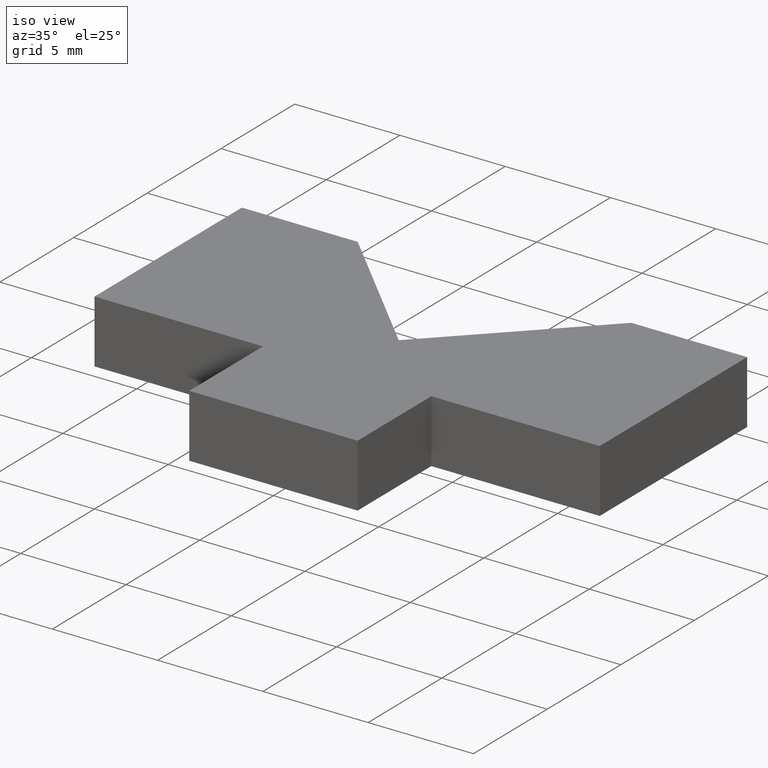
[diagram: clean part render]
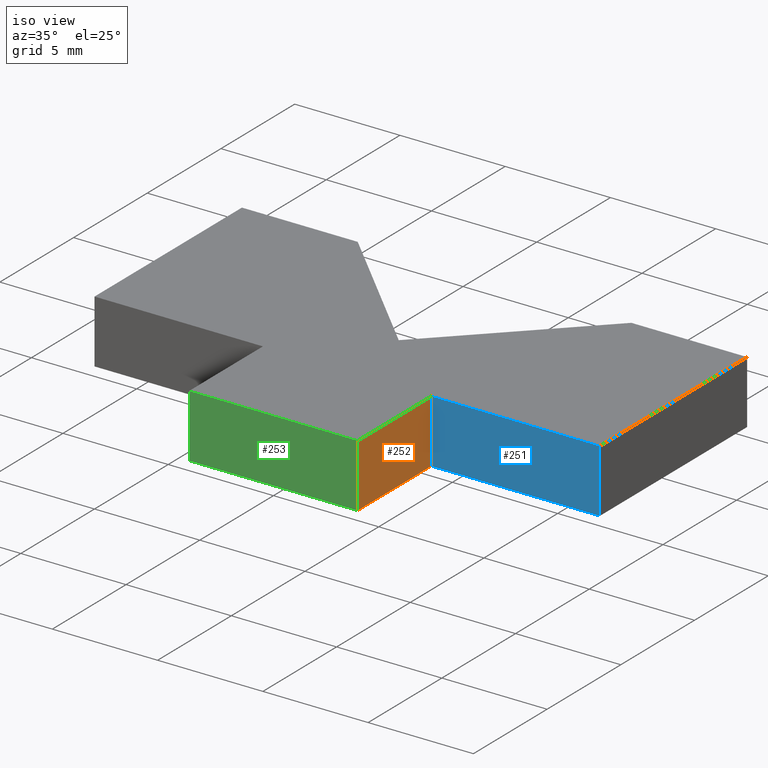
[diagram: same view with three faces highlighted in distinct colors, each labeled with its STEP entity id]
A machine part, iso view with three faces highlighted in distinct colors.
Their STEP definitions:

[orange] entity #252 — the highlighted planar face has unit normal (1, -0, 0).
#26=FACE_OUTER_BOUND('',#39,.T.);
#39=EDGE_LOOP('',(#210,#211,#212,#213));
#52=LINE('',#375,#85);
#71=LINE('',#413,#104);
#72=LINE('',#416,#105);
#73=LINE('',#417,#106);
#85=VECTOR('',#305,10.);
#104=VECTOR('',#342,10.);
#105=VECTOR('',#345,10.);
#106=VECTOR('',#346,10.);
#109=VERTEX_POINT('',#355);
#118=VERTEX_POINT('',#373);
#128=VERTEX_POINT('',#411);
#129=VERTEX_POINT('',#415);
#140=EDGE_CURVE('',#109,#118,#52,.T.);
#159=EDGE_CURVE('',#128,#118,#71,.T.);
#160=EDGE_CURVE('',#128,#129,#72,.T.);
#161=EDGE_CURVE('',#129,#109,#73,.T.);
#210=ORIENTED_EDGE('',*,*,#160,.T.);
#211=ORIENTED_EDGE('',*,*,#161,.T.);
#212=ORIENTED_EDGE('',*,*,#140,.T.);
#213=ORIENTED_EDGE('',*,*,#159,.F.);
#239=PLANE('',#288);
#252=ADVANCED_FACE('',(#26),#239,.T.);
#288=AXIS2_PLACEMENT_3D('',#414,#343,#344);
#305=DIRECTION('',(3.33066907387547E-16,1.,0.));
#342=DIRECTION('',(0.,0.,-1.));
#343=DIRECTION('center_axis',(1.,-3.33066907387547E-16,0.));
#344=DIRECTION('ref_axis',(0.,0.,-1.));
#345=DIRECTION('',(-3.33066907387547E-16,-1.,0.));
#346=DIRECTION('',(0.,0.,-1.));
#355=CARTESIAN_POINT('',(4.,5.55111512312578E-16,-1.5));
#373=CARTESIAN_POINT('',(4.,5.,-1.5));
#375=CARTESIAN_POINT('',(4.,5.,-1.5));
#411=CARTESIAN_POINT('',(4.,5.,1.5));
#413=CARTESIAN_POINT('',(4.,5.,0.));
#414=CARTESIAN_POINT('Origin',(4.,5.,0.));
#415=CARTESIAN_POINT('',(4.,5.55111512312578E-16,1.5));
#416=CARTESIAN_POINT('',(4.,5.,1.5));
#417=CARTESIAN_POINT('',(4.,5.55111512312578E-16,0.));

[blue] entity #251 — the highlighted planar face has unit normal (-0, -1, 0).
#25=FACE_OUTER_BOUND('',#38,.T.);
#38=EDGE_LOOP('',(#206,#207,#208,#209));
#51=LINE('',#374,#84);
#69=LINE('',#409,#102);
#70=LINE('',#412,#103);
#71=LINE('',#413,#104);
#84=VECTOR('',#304,10.);
#102=VECTOR('',#338,10.);
#103=VECTOR('',#341,10.);
#104=VECTOR('',#342,10.);
#117=VERTEX_POINT('',#371);
#118=VERTEX_POINT('',#373);
#127=VERTEX_POINT('',#407);
#128=VERTEX_POINT('',#411);
#139=EDGE_CURVE('',#118,#117,#51,.T.);
#157=EDGE_CURVE('',#127,#117,#69,.T.);
#158=EDGE_CURVE('',#127,#128,#70,.T.);
#159=EDGE_CURVE('',#128,#118,#71,.T.);
#206=ORIENTED_EDGE('',*,*,#158,.T.);
#207=ORIENTED_EDGE('',*,*,#159,.T.);
#208=ORIENTED_EDGE('',*,*,#139,.T.);
#209=ORIENTED_EDGE('',*,*,#157,.F.);
#238=PLANE('',#287);
#251=ADVANCED_FACE('',(#25),#238,.T.);
#287=AXIS2_PLACEMENT_3D('',#410,#339,#340);
#304=DIRECTION('',(1.,-1.38777878078145E-16,0.));
#338=DIRECTION('',(0.,0.,-1.));
#339=DIRECTION('center_axis',(-1.38777878078145E-16,-1.,0.));
#340=DIRECTION('ref_axis',(0.,0.,-1.));
#341=DIRECTION('',(-1.,1.38777878078145E-16,0.));
#342=DIRECTION('',(0.,0.,-1.));
#371=CARTESIAN_POINT('',(12.,5.,-1.5));
#373=CARTESIAN_POINT('',(4.,5.,-1.5));
#374=CARTESIAN_POINT('',(12.,5.,-1.5));
#407=CARTESIAN_POINT('',(12.,5.,1.5));
#409=CARTESIAN_POINT('',(12.,5.,0.));
#410=CARTESIAN_POINT('Origin',(12.,5.,0.));
#411=CARTESIAN_POINT('',(4.,5.,1.5));
#412=CARTESIAN_POINT('',(12.,5.,1.5));
#413=CARTESIAN_POINT('',(4.,5.,0.));

[green] entity #253 — the highlighted planar face has unit normal (0, -1, 0).
#27=FACE_OUTER_BOUND('',#40,.T.);
#40=EDGE_LOOP('',(#214,#215,#216,#217));
#42=LINE('',#356,#75);
#55=LINE('',#381,#88);
#73=LINE('',#417,#106);
#74=LINE('',#419,#107);
#75=VECTOR('',#295,10.);
#88=VECTOR('',#310,10.);
#106=VECTOR('',#346,10.);
#107=VECTOR('',#349,10.);
#108=VERTEX_POINT('',#354);
#109=VERTEX_POINT('',#355);
#119=VERTEX_POINT('',#377);
#129=VERTEX_POINT('',#415);
#130=EDGE_CURVE('',#108,#109,#42,.T.);
#143=EDGE_CURVE('',#119,#108,#55,.T.);
#161=EDGE_CURVE('',#129,#109,#73,.T.);
#162=EDGE_CURVE('',#129,#119,#74,.T.);
#214=ORIENTED_EDGE('',*,*,#162,.T.);
#215=ORIENTED_EDGE('',*,*,#143,.T.);
#216=ORIENTED_EDGE('',*,*,#130,.T.);
#217=ORIENTED_EDGE('',*,*,#161,.F.);
#240=PLANE('',#289);
#253=ADVANCED_FACE('',(#27),#240,.T.);
#289=AXIS2_PLACEMENT_3D('',#418,#347,#348);
#295=DIRECTION('',(1.,-1.38777878078145E-16,0.));
#310=DIRECTION('',(0.,0.,-1.));
#346=DIRECTION('',(0.,0.,-1.));
#347=DIRECTION('center_axis',(1.38777878078145E-16,-1.,0.));
#348=DIRECTION('ref_axis',(0.,0.,-1.));
#349=DIRECTION('',(-1.,-1.38777878078145E-16,0.));
#354=CARTESIAN_POINT('',(-4.,5.55111512312578E-16,-1.5));
#355=CARTESIAN_POINT('',(4.,5.55111512312578E-16,-1.5));
#356=CARTESIAN_POINT('',(4.,5.55111512312578E-16,-1.5));
#377=CARTESIAN_POINT('',(-4.,5.55111512312578E-16,1.5));
#381=CARTESIAN_POINT('',(-4.,5.55111512312578E-16,0.));
#415=CARTESIAN_POINT('',(4.,5.55111512312578E-16,1.5));
#417=CARTESIAN_POINT('',(4.,5.55111512312578E-16,0.));
#418=CARTESIAN_POINT('Origin',(2.22044604925031E-15,1.11022302462516E-15,
0.));
#419=CARTESIAN_POINT('',(2.22044604925031E-15,1.11022302462516E-15,1.5));